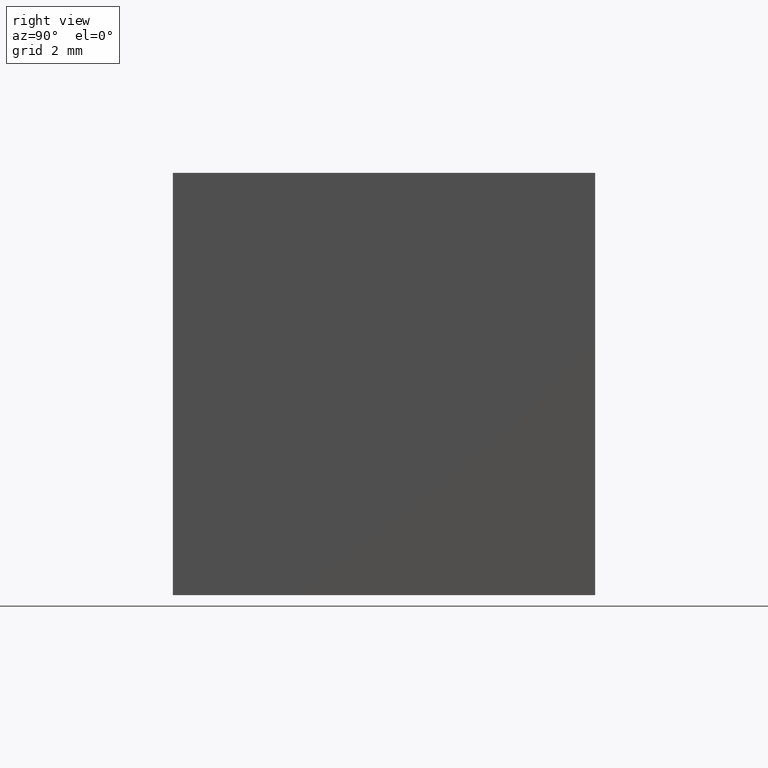
[diagram: clean part render]
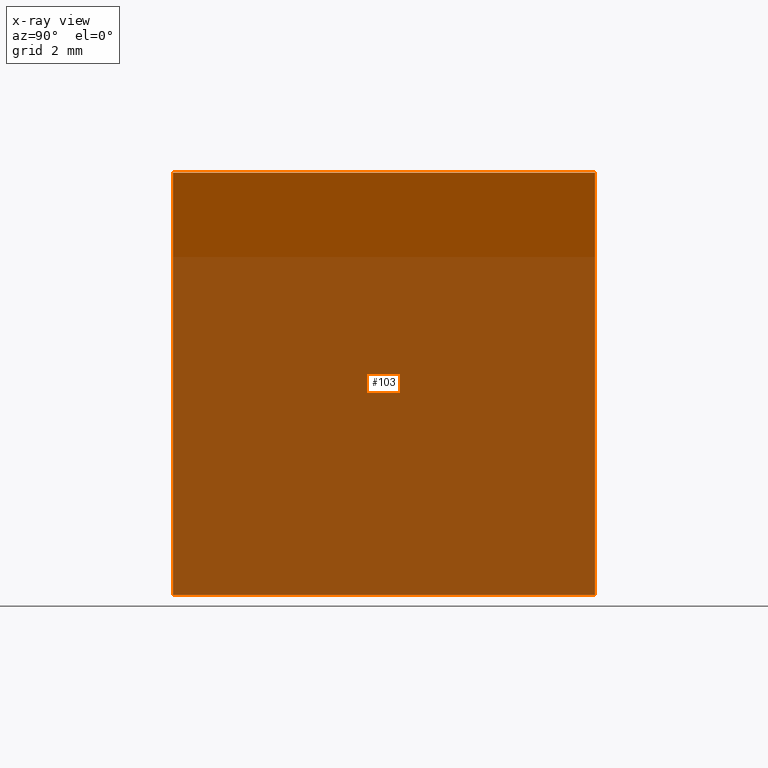
[diagram: x-ray — body ghosted, one internal face saturated and labeled with its STEP entity id]
A machine part, right view, then the same camera in x-ray: the body is ghosted and one INTERNAL B-rep face — a face not visible from any outside direction — is saturated and labeled: STEP entity #103.
In plain terms, the highlighted planar face has unit normal (0.7071, 0, -0.7071).
Its self-contained STEP definition (entity closure, byte-faithful):
#7 = DIRECTION ( 'NONE',  ( -0.0000000000000000000, -1.000000000000000000, -0.0000000000000000000 ) ) ;
#12 = LINE ( 'NONE', #239, #129 ) ;
#13 = DIRECTION ( 'NONE',  ( -0.7071067811865476800, 0.0000000000000000000, -0.7071067811865474600 ) ) ;
#14 = ORIENTED_EDGE ( 'NONE', *, *, #127, .F. ) ;
#28 = DIRECTION ( 'NONE',  ( 0.7071067811865476800, 0.0000000000000000000, 0.7071067811865474600 ) ) ;
#30 = CARTESIAN_POINT ( 'NONE',  ( -10.00000000000000000, 10.00000000000000000, -9.999999999999996400 ) ) ;
#38 = EDGE_LOOP ( 'NONE', ( #62, #14, #101, #167 ) ) ;
#45 = DIRECTION ( 'NONE',  ( 0.7071067811865474600, 0.0000000000000000000, -0.7071067811865476800 ) ) ;
#47 = DIRECTION ( 'NONE',  ( 0.7071067811865476800, 0.0000000000000000000, 0.7071067811865474600 ) ) ;
#62 = ORIENTED_EDGE ( 'NONE', *, *, #94, .T. ) ;
#68 = VECTOR ( 'NONE', #264, 1000.000000000000000 ) ;
#69 = EDGE_CURVE ( 'NONE', #177, #296, #139, .T. ) ;
#78 = FACE_OUTER_BOUND ( 'NONE', #38, .T. ) ;
#93 = PLANE ( 'NONE',  #181 ) ;
#94 = EDGE_CURVE ( 'NONE', #296, #188, #210, .T. ) ;
#96 = CARTESIAN_POINT ( 'NONE',  ( -10.00000000000000000, 0.0000000000000000000, -9.999999999999996400 ) ) ;
#101 = ORIENTED_EDGE ( 'NONE', *, *, #147, .F. ) ;
#103 = ADVANCED_FACE ( 'NONE', ( #78 ), #93, .F. ) ;
#127 = EDGE_CURVE ( 'NONE', #263, #188, #251, .T. ) ;
#129 = VECTOR ( 'NONE', #28, 1000.000000000000000 ) ;
#136 = VECTOR ( 'NONE', #47, 1000.000000000000000 ) ;
#139 = LINE ( 'NONE', #30, #68 ) ;
#147 = EDGE_CURVE ( 'NONE', #177, #263, #12, .T. ) ;
#167 = ORIENTED_EDGE ( 'NONE', *, *, #69, .T. ) ;
#177 = VERTEX_POINT ( 'NONE', #283 ) ;
#181 = AXIS2_PLACEMENT_3D ( 'NONE', #198, #45, #13 ) ;
#188 = VERTEX_POINT ( 'NONE', #259 ) ;
#189 = VECTOR ( 'NONE', #7, 1000.000000000000000 ) ;
#192 = CARTESIAN_POINT ( 'NONE',  ( 0.0000000000000000000, 10.00000000000000000, 0.0000000000000000000 ) ) ;
#198 = CARTESIAN_POINT ( 'NONE',  ( -10.00000000000000000, 10.00000000000000000, -9.999999999999996400 ) ) ;
#208 = CARTESIAN_POINT ( 'NONE',  ( 0.0000000000000000000, 10.00000000000000000, 0.0000000000000000000 ) ) ;
#210 = LINE ( 'NONE', #96, #136 ) ;
#239 = CARTESIAN_POINT ( 'NONE',  ( -10.00000000000000000, 10.00000000000000000, -9.999999999999996400 ) ) ;
#251 = LINE ( 'NONE', #192, #189 ) ;
#259 = CARTESIAN_POINT ( 'NONE',  ( 0.0000000000000000000, 0.0000000000000000000, 0.0000000000000000000 ) ) ;
#263 = VERTEX_POINT ( 'NONE', #208 ) ;
#264 = DIRECTION ( 'NONE',  ( -0.0000000000000000000, -1.000000000000000000, -0.0000000000000000000 ) ) ;
#279 = CARTESIAN_POINT ( 'NONE',  ( -10.00000000000000000, 0.0000000000000000000, -9.999999999999996400 ) ) ;
#283 = CARTESIAN_POINT ( 'NONE',  ( -10.00000000000000000, 10.00000000000000000, -9.999999999999996400 ) ) ;
#296 = VERTEX_POINT ( 'NONE', #279 ) ;